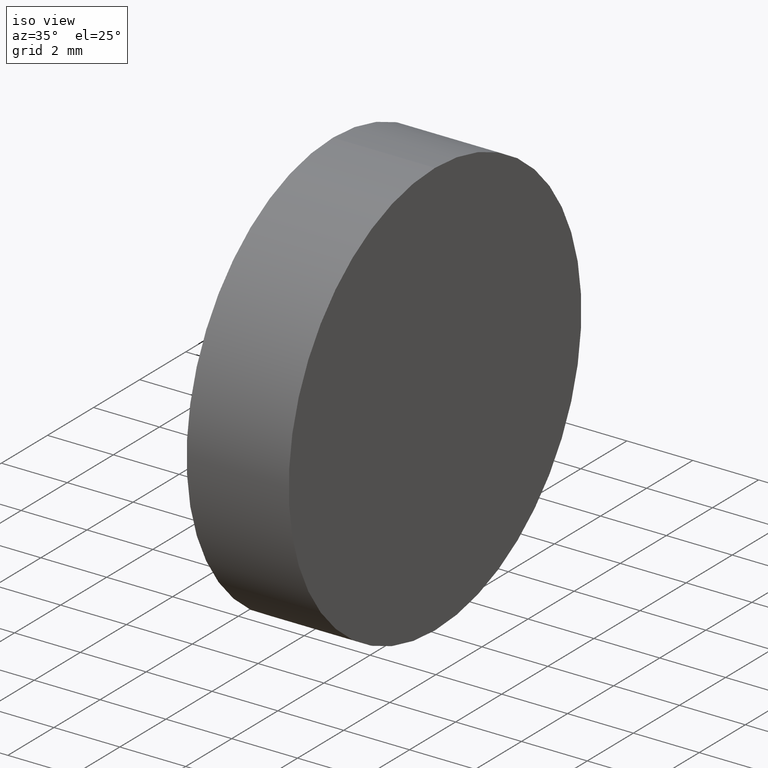
[diagram: clean part render]
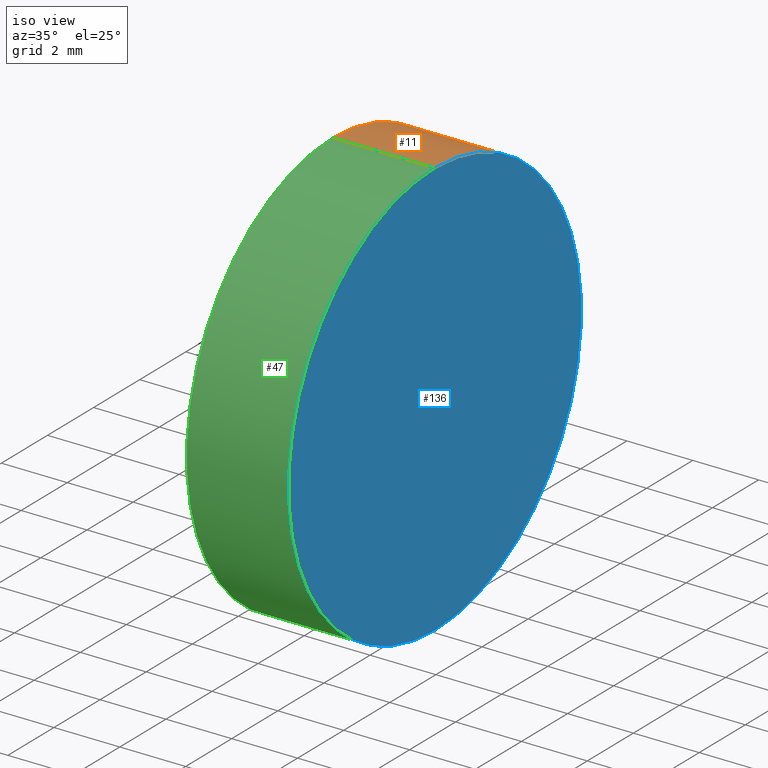
[diagram: same view with three faces highlighted in distinct colors, each labeled with its STEP entity id]
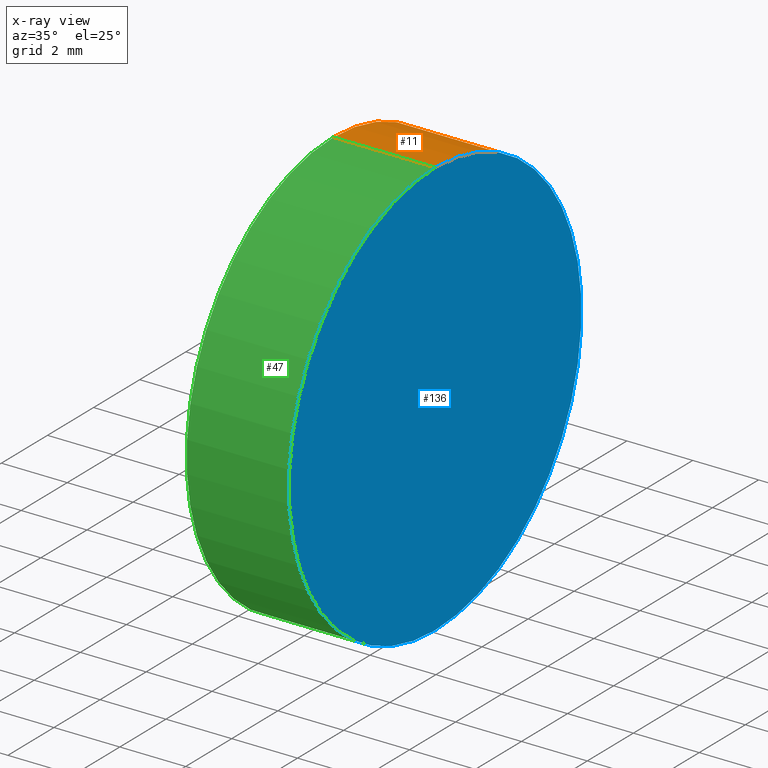
[diagram: x-ray of the same camera — body ghosted, the three highlighted faces saturated]
A machine part, iso view with three faces highlighted in distinct colors.
The next image is the same camera in x-ray (body ghosted, the three faces saturated) — at least one of them is partly hidden behind the body in this view.
Their STEP definitions:

[orange] entity #11 — the highlighted cylindrical surface (partial cylindrical patch) has radius 6.35 mm, axis along (-1, -0, -0).
#4 = VERTEX_POINT ( 'NONE', #17 ) ;
#10 = AXIS2_PLACEMENT_3D ( 'NONE', #75, #74, #38 ) ;
#11 = ADVANCED_FACE ( 'NONE', ( #129 ), #93, .T. ) ;
#15 = DIRECTION ( 'NONE',  ( -1.000000000000000000, -0.0000000000000000000, -0.0000000000000000000 ) ) ;
#17 = CARTESIAN_POINT ( 'NONE',  ( 259.7243528930642900, 83.64317934901542600, -6.349999999999994300 ) ) ;
#21 = CARTESIAN_POINT ( 'NONE',  ( 254.0008019926160300, 83.64317934901542600, 6.349999999999994300 ) ) ;
#22 = AXIS2_PLACEMENT_3D ( 'NONE', #49, #118, #139 ) ;
#24 = EDGE_LOOP ( 'NONE', ( #138, #91, #92, #36 ) ) ;
#27 = VECTOR ( 'NONE', #86, 1000.000000000000000 ) ;
#28 = CARTESIAN_POINT ( 'NONE',  ( 254.0008019926160300, 83.64317934901542600, -6.349999999999994300 ) ) ;
#36 = ORIENTED_EDGE ( 'NONE', *, *, #125, .F. ) ;
#38 = DIRECTION ( 'NONE',  ( 0.0000000000000000000, 0.0000000000000000000, 1.000000000000000000 ) ) ;
#46 = EDGE_CURVE ( 'NONE', #106, #55, #48, .T. ) ;
#48 = CIRCLE ( 'NONE', #10, 6.349999999999994300 ) ;
#49 = CARTESIAN_POINT ( 'NONE',  ( 254.0008019926160300, 83.64317934901542600, 0.0000000000000000000 ) ) ;
#52 = CARTESIAN_POINT ( 'NONE',  ( 259.7243528930642900, 83.64317934901542600, 0.0000000000000000000 ) ) ;
#53 = EDGE_CURVE ( 'NONE', #55, #4, #108, .T. ) ;
#55 = VERTEX_POINT ( 'NONE', #104 ) ;
#65 = CIRCLE ( 'NONE', #124, 6.349999999999994300 ) ;
#67 = VECTOR ( 'NONE', #15, 1000.000000000000000 ) ;
#74 = DIRECTION ( 'NONE',  ( -1.000000000000000000, -0.0000000000000000000, -0.0000000000000000000 ) ) ;
#75 = CARTESIAN_POINT ( 'NONE',  ( 262.8243528930643200, 83.64317934901542600, 0.0000000000000000000 ) ) ;
#76 = LINE ( 'NONE', #21, #27 ) ;
#77 = DIRECTION ( 'NONE',  ( -1.000000000000000000, -0.0000000000000000000, -0.0000000000000000000 ) ) ;
#83 = EDGE_CURVE ( 'NONE', #137, #4, #65, .T. ) ;
#86 = DIRECTION ( 'NONE',  ( -1.000000000000000000, -0.0000000000000000000, -0.0000000000000000000 ) ) ;
#91 = ORIENTED_EDGE ( 'NONE', *, *, #53, .T. ) ;
#92 = ORIENTED_EDGE ( 'NONE', *, *, #83, .F. ) ;
#93 = CYLINDRICAL_SURFACE ( 'NONE', #22, 6.349999999999994300 ) ;
#104 = CARTESIAN_POINT ( 'NONE',  ( 262.8243528930643200, 83.64317934901542600, -6.349999999999994300 ) ) ;
#106 = VERTEX_POINT ( 'NONE', #121 ) ;
#108 = LINE ( 'NONE', #28, #67 ) ;
#118 = DIRECTION ( 'NONE',  ( -1.000000000000000000, -0.0000000000000000000, -0.0000000000000000000 ) ) ;
#121 = CARTESIAN_POINT ( 'NONE',  ( 262.8243528930643200, 83.64317934901542600, 6.349999999999994300 ) ) ;
#122 = CARTESIAN_POINT ( 'NONE',  ( 259.7243528930642900, 83.64317934901542600, 6.349999999999994300 ) ) ;
#124 = AXIS2_PLACEMENT_3D ( 'NONE', #52, #77, #128 ) ;
#125 = EDGE_CURVE ( 'NONE', #106, #137, #76, .T. ) ;
#128 = DIRECTION ( 'NONE',  ( 0.0000000000000000000, 0.0000000000000000000, 1.000000000000000000 ) ) ;
#129 = FACE_OUTER_BOUND ( 'NONE', #24, .T. ) ;
#137 = VERTEX_POINT ( 'NONE', #122 ) ;
#138 = ORIENTED_EDGE ( 'NONE', *, *, #46, .T. ) ;
#139 = DIRECTION ( 'NONE',  ( 0.0000000000000000000, 0.0000000000000000000, 1.000000000000000000 ) ) ;

[blue] entity #136 — the highlighted planar face has unit normal (-1, 0, -0).
#5 = FACE_OUTER_BOUND ( 'NONE', #79, .T. ) ;
#10 = AXIS2_PLACEMENT_3D ( 'NONE', #75, #74, #38 ) ;
#18 = DIRECTION ( 'NONE',  ( -1.000000000000000000, -0.0000000000000000000, -0.0000000000000000000 ) ) ;
#19 = DIRECTION ( 'NONE',  ( -1.000000000000000000, 0.0000000000000000000, -0.0000000000000000000 ) ) ;
#31 = CARTESIAN_POINT ( 'NONE',  ( 262.8243528930643200, 83.64317934901542600, 0.0000000000000000000 ) ) ;
#38 = DIRECTION ( 'NONE',  ( 0.0000000000000000000, 0.0000000000000000000, 1.000000000000000000 ) ) ;
#46 = EDGE_CURVE ( 'NONE', #106, #55, #48, .T. ) ;
#48 = CIRCLE ( 'NONE', #10, 6.349999999999994300 ) ;
#51 = AXIS2_PLACEMENT_3D ( 'NONE', #31, #19, #87 ) ;
#55 = VERTEX_POINT ( 'NONE', #104 ) ;
#61 = ORIENTED_EDGE ( 'NONE', *, *, #119, .F. ) ;
#63 = PLANE ( 'NONE',  #51 ) ;
#74 = DIRECTION ( 'NONE',  ( -1.000000000000000000, -0.0000000000000000000, -0.0000000000000000000 ) ) ;
#75 = CARTESIAN_POINT ( 'NONE',  ( 262.8243528930643200, 83.64317934901542600, 0.0000000000000000000 ) ) ;
#79 = EDGE_LOOP ( 'NONE', ( #134, #61 ) ) ;
#87 = DIRECTION ( 'NONE',  ( -0.0000000000000000000, 0.0000000000000000000, 1.000000000000000000 ) ) ;
#98 = CARTESIAN_POINT ( 'NONE',  ( 262.8243528930643200, 83.64317934901542600, 0.0000000000000000000 ) ) ;
#104 = CARTESIAN_POINT ( 'NONE',  ( 262.8243528930643200, 83.64317934901542600, -6.349999999999994300 ) ) ;
#106 = VERTEX_POINT ( 'NONE', #121 ) ;
#119 = EDGE_CURVE ( 'NONE', #55, #106, #133, .T. ) ;
#121 = CARTESIAN_POINT ( 'NONE',  ( 262.8243528930643200, 83.64317934901542600, 6.349999999999994300 ) ) ;
#130 = DIRECTION ( 'NONE',  ( 0.0000000000000000000, 0.0000000000000000000, 1.000000000000000000 ) ) ;
#132 = AXIS2_PLACEMENT_3D ( 'NONE', #98, #18, #130 ) ;
#133 = CIRCLE ( 'NONE', #132, 6.349999999999994300 ) ;
#134 = ORIENTED_EDGE ( 'NONE', *, *, #46, .F. ) ;
#136 = ADVANCED_FACE ( 'NONE', ( #5 ), #63, .F. ) ;

[green] entity #47 — the highlighted cylindrical surface (partial cylindrical patch) has radius 6.35 mm, axis along (-1, -0, -0).
#4 = VERTEX_POINT ( 'NONE', #17 ) ;
#12 = ORIENTED_EDGE ( 'NONE', *, *, #119, .T. ) ;
#13 = ORIENTED_EDGE ( 'NONE', *, *, #70, .F. ) ;
#15 = DIRECTION ( 'NONE',  ( -1.000000000000000000, -0.0000000000000000000, -0.0000000000000000000 ) ) ;
#17 = CARTESIAN_POINT ( 'NONE',  ( 259.7243528930642900, 83.64317934901542600, -6.349999999999994300 ) ) ;
#18 = DIRECTION ( 'NONE',  ( -1.000000000000000000, -0.0000000000000000000, -0.0000000000000000000 ) ) ;
#21 = CARTESIAN_POINT ( 'NONE',  ( 254.0008019926160300, 83.64317934901542600, 6.349999999999994300 ) ) ;
#27 = VECTOR ( 'NONE', #86, 1000.000000000000000 ) ;
#28 = CARTESIAN_POINT ( 'NONE',  ( 254.0008019926160300, 83.64317934901542600, -6.349999999999994300 ) ) ;
#29 = FACE_OUTER_BOUND ( 'NONE', #41, .T. ) ;
#32 = DIRECTION ( 'NONE',  ( -1.000000000000000000, -0.0000000000000000000, -0.0000000000000000000 ) ) ;
#33 = DIRECTION ( 'NONE',  ( 0.0000000000000000000, 0.0000000000000000000, 1.000000000000000000 ) ) ;
#41 = EDGE_LOOP ( 'NONE', ( #42, #12, #72, #13 ) ) ;
#42 = ORIENTED_EDGE ( 'NONE', *, *, #53, .F. ) ;
#47 = ADVANCED_FACE ( 'NONE', ( #29 ), #115, .T. ) ;
#50 = DIRECTION ( 'NONE',  ( -1.000000000000000000, -0.0000000000000000000, -0.0000000000000000000 ) ) ;
#53 = EDGE_CURVE ( 'NONE', #55, #4, #108, .T. ) ;
#55 = VERTEX_POINT ( 'NONE', #104 ) ;
#58 = CIRCLE ( 'NONE', #97, 6.349999999999994300 ) ;
#62 = CARTESIAN_POINT ( 'NONE',  ( 259.7243528930642900, 83.64317934901542600, 0.0000000000000000000 ) ) ;
#67 = VECTOR ( 'NONE', #15, 1000.000000000000000 ) ;
#69 = CARTESIAN_POINT ( 'NONE',  ( 254.0008019926160300, 83.64317934901542600, 0.0000000000000000000 ) ) ;
#70 = EDGE_CURVE ( 'NONE', #4, #137, #58, .T. ) ;
#72 = ORIENTED_EDGE ( 'NONE', *, *, #125, .T. ) ;
#76 = LINE ( 'NONE', #21, #27 ) ;
#86 = DIRECTION ( 'NONE',  ( -1.000000000000000000, -0.0000000000000000000, -0.0000000000000000000 ) ) ;
#96 = DIRECTION ( 'NONE',  ( 0.0000000000000000000, 0.0000000000000000000, 1.000000000000000000 ) ) ;
#97 = AXIS2_PLACEMENT_3D ( 'NONE', #62, #32, #33 ) ;
#98 = CARTESIAN_POINT ( 'NONE',  ( 262.8243528930643200, 83.64317934901542600, 0.0000000000000000000 ) ) ;
#104 = CARTESIAN_POINT ( 'NONE',  ( 262.8243528930643200, 83.64317934901542600, -6.349999999999994300 ) ) ;
#106 = VERTEX_POINT ( 'NONE', #121 ) ;
#108 = LINE ( 'NONE', #28, #67 ) ;
#115 = CYLINDRICAL_SURFACE ( 'NONE', #140, 6.349999999999994300 ) ;
#119 = EDGE_CURVE ( 'NONE', #55, #106, #133, .T. ) ;
#121 = CARTESIAN_POINT ( 'NONE',  ( 262.8243528930643200, 83.64317934901542600, 6.349999999999994300 ) ) ;
#122 = CARTESIAN_POINT ( 'NONE',  ( 259.7243528930642900, 83.64317934901542600, 6.349999999999994300 ) ) ;
#125 = EDGE_CURVE ( 'NONE', #106, #137, #76, .T. ) ;
#130 = DIRECTION ( 'NONE',  ( 0.0000000000000000000, 0.0000000000000000000, 1.000000000000000000 ) ) ;
#132 = AXIS2_PLACEMENT_3D ( 'NONE', #98, #18, #130 ) ;
#133 = CIRCLE ( 'NONE', #132, 6.349999999999994300 ) ;
#137 = VERTEX_POINT ( 'NONE', #122 ) ;
#140 = AXIS2_PLACEMENT_3D ( 'NONE', #69, #50, #96 ) ;